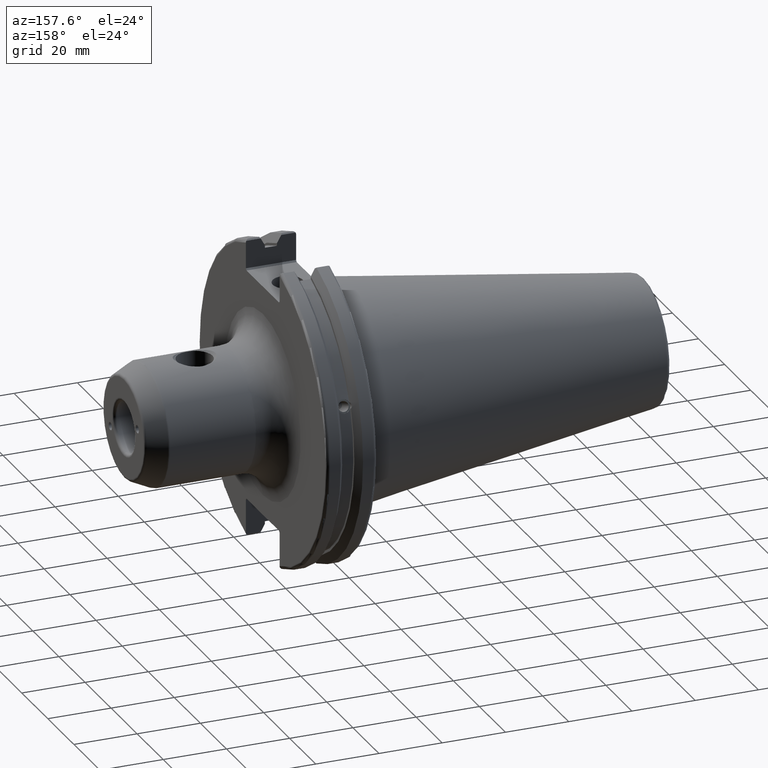
[diagram: clean part render]
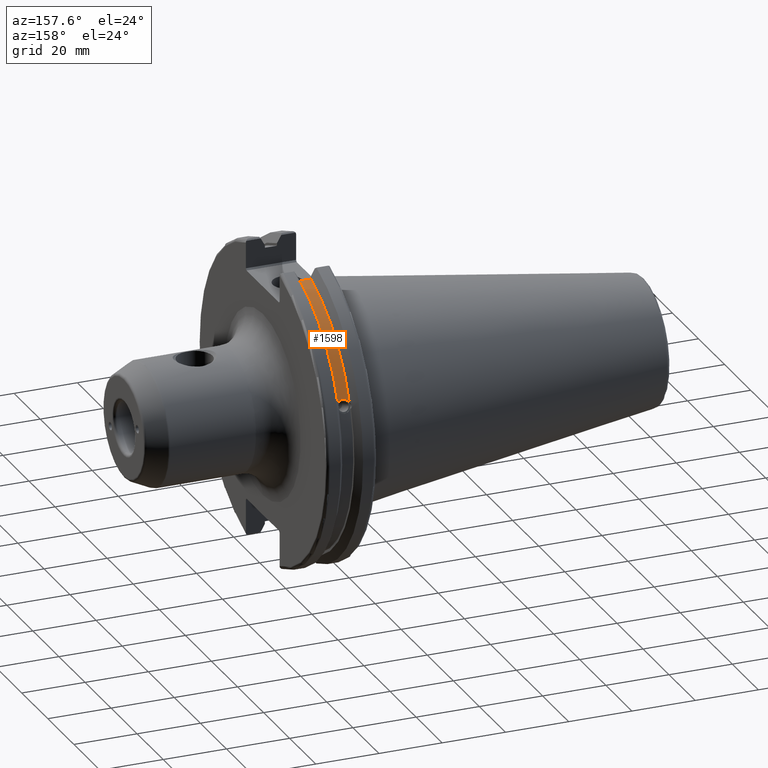
[diagram: same view with one face highlighted and labeled with its STEP entity id]
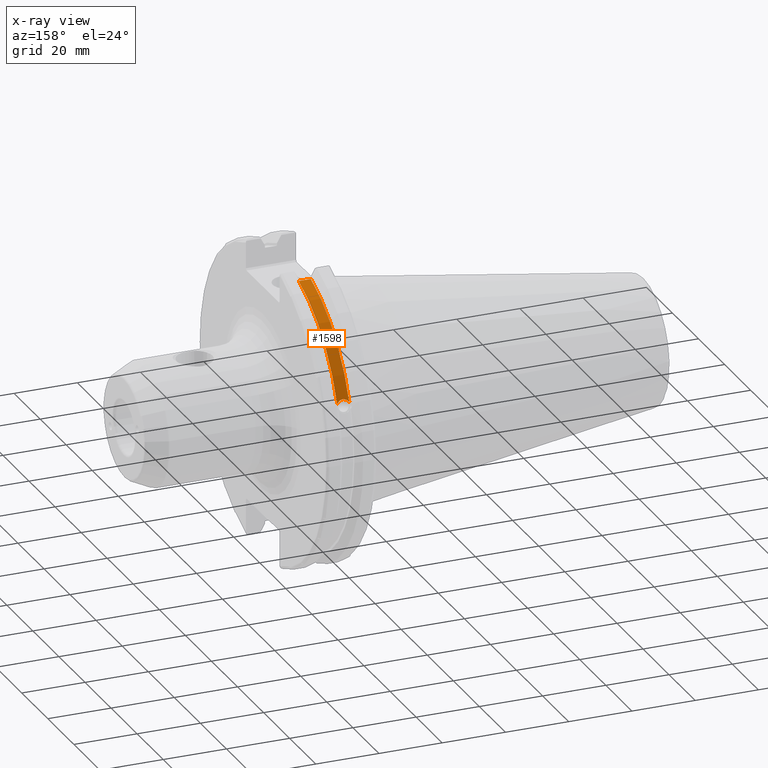
[diagram: x-ray of the same camera — body ghosted, the highlighted face saturated]
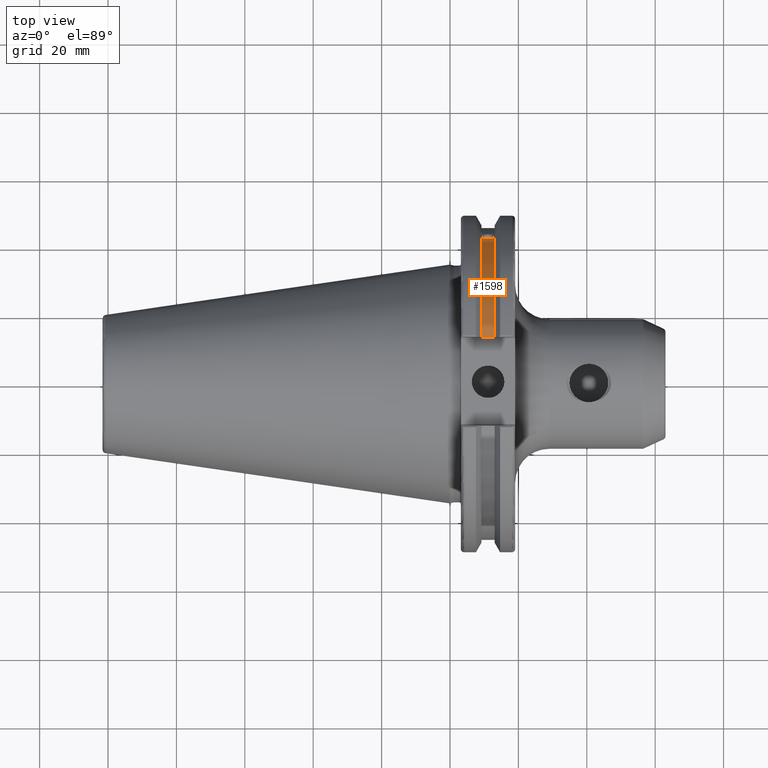
[diagram: same view with one face highlighted and labeled with its STEP entity id]
A machine part, auxiliary view. The second image highlights one B-rep face of the part: STEP entity #1598.
The next image is the same camera in x-ray: the body ghosted, the highlighted face saturated — about 0% of this face is hidden behind the body in this view.
A second angle (top view) of the same face is appended — the face is thin or edge-on in the first view.
In plain terms, the highlighted cylindrical surface (partial cylindrical patch) has radius 45.6435 mm, axis along (1, 0, 0).
Its self-contained STEP definition (entity closure, byte-faithful):
#157=CIRCLE('',#1754,45.6435);
#158=CIRCLE('',#1756,45.6435);
#228=FACE_OUTER_BOUND('',#330,.T.);
#330=EDGE_LOOP('',(#1267,#1268,#1269,#1270));
#424=B_SPLINE_CURVE_WITH_KNOTS('',3,(#3016,#3017,#3018,#3019,#3020,#3021,
#3022,#3023,#3024,#3025,#3026,#3027,#3028,#3029,#3030),.UNSPECIFIED.,.F.,
 .F.,(4,2,2,3,2,2,4),(-0.231381164054415,-0.158232381135623,-0.0791161905678115,
0.,0.0791161905678115,0.158232381135623,0.231381164054564),
 .UNSPECIFIED.);
#486=LINE('',#3071,#582);
#582=VECTOR('',#2056,10.);
#730=VERTEX_POINT('',#3013);
#731=VERTEX_POINT('',#3015);
#739=VERTEX_POINT('',#3065);
#740=VERTEX_POINT('',#3069);
#924=EDGE_CURVE('',#731,#730,#424,.T.);
#934=EDGE_CURVE('',#731,#739,#157,.T.);
#936=EDGE_CURVE('',#730,#740,#158,.T.);
#937=EDGE_CURVE('',#740,#739,#486,.T.);
#1267=ORIENTED_EDGE('',*,*,#924,.T.);
#1268=ORIENTED_EDGE('',*,*,#936,.T.);
#1269=ORIENTED_EDGE('',*,*,#937,.T.);
#1270=ORIENTED_EDGE('',*,*,#934,.F.);
#1550=CYLINDRICAL_SURFACE('',#1755,45.6435);
#1598=ADVANCED_FACE('',(#228),#1550,.T.);
#1754=AXIS2_PLACEMENT_3D('',#3066,#2049,#2050);
#1755=AXIS2_PLACEMENT_3D('',#3068,#2052,#2053);
#1756=AXIS2_PLACEMENT_3D('',#3070,#2054,#2055);
#2049=DIRECTION('center_axis',(1.,0.,0.));
#2050=DIRECTION('ref_axis',(0.,0.,-1.));
#2052=DIRECTION('center_axis',(1.,0.,0.));
#2053=DIRECTION('ref_axis',(0.,1.,0.));
#2054=DIRECTION('center_axis',(1.,0.,0.));
#2055=DIRECTION('ref_axis',(0.,0.,-1.));
#2056=DIRECTION('',(1.,0.,0.));
#3013=CARTESIAN_POINT('',(9.21200000000001,42.5884454651059,16.4180816515115));
#3015=CARTESIAN_POINT('',(13.042,42.5884454651059,16.4180816515116));
#3016=CARTESIAN_POINT('Ctrl Pts',(13.042,42.5884454651059,16.4180816515116));
#3017=CARTESIAN_POINT('Ctrl Pts',(12.9357782240206,42.5035323832641,16.6383458840849));
#3018=CARTESIAN_POINT('Ctrl Pts',(12.784291924423,42.4245077186417,16.8380515255915));
#3019=CARTESIAN_POINT('Ctrl Pts',(12.4254949659982,42.2908173017388,17.1712159412199));
#3020=CARTESIAN_POINT('Ctrl Pts',(12.1893796719457,42.2294695309474,17.3208689126276));
#3021=CARTESIAN_POINT('Ctrl Pts',(11.6719940832128,42.1475978938586,17.5191491957165));
#3022=CARTESIAN_POINT('Ctrl Pts',(11.390720635226,42.1271980081205,17.5678194501937));
#3023=CARTESIAN_POINT('Ctrl Pts',(11.127,42.1271980081205,17.5678194501937));
#3024=CARTESIAN_POINT('Ctrl Pts',(10.863279364774,42.1271980081205,17.5678194501937));
#3025=CARTESIAN_POINT('Ctrl Pts',(10.5820059167872,42.1475978938586,17.5191491957165));
#3026=CARTESIAN_POINT('Ctrl Pts',(10.0646203280543,42.2294695309474,17.3208689126276));
#3027=CARTESIAN_POINT('Ctrl Pts',(9.8285050340018,42.2908173017388,17.1712159412199));
#3028=CARTESIAN_POINT('Ctrl Pts',(9.46970807557666,42.4245077186418,16.8380515255912));
#3029=CARTESIAN_POINT('Ctrl Pts',(9.31822177598177,42.5035323832622,16.6383458840897));
#3030=CARTESIAN_POINT('Ctrl Pts',(9.212,42.5884454651059,16.4180816515115));
#3065=CARTESIAN_POINT('',(13.042,12.95,43.7678716897452));
#3066=CARTESIAN_POINT('Origin',(13.042,0.,0.));
#3068=CARTESIAN_POINT('Origin',(11.127,0.,0.));
#3069=CARTESIAN_POINT('',(9.21200000000001,12.95,43.7678716897452));
#3070=CARTESIAN_POINT('Origin',(9.21200000000001,0.,0.));
#3071=CARTESIAN_POINT('',(11.127,12.95,43.7678716897452));